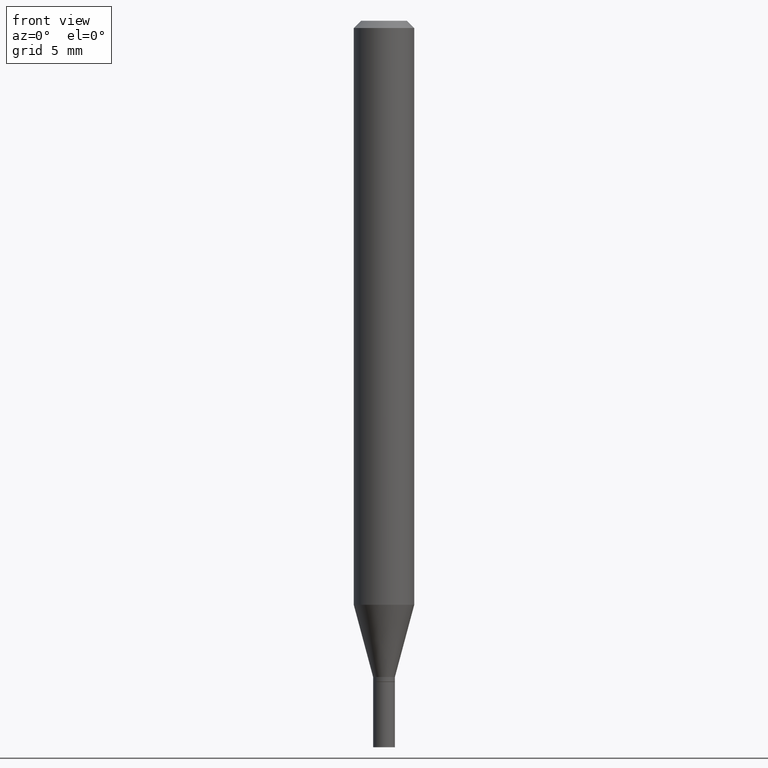
[diagram: clean part render]
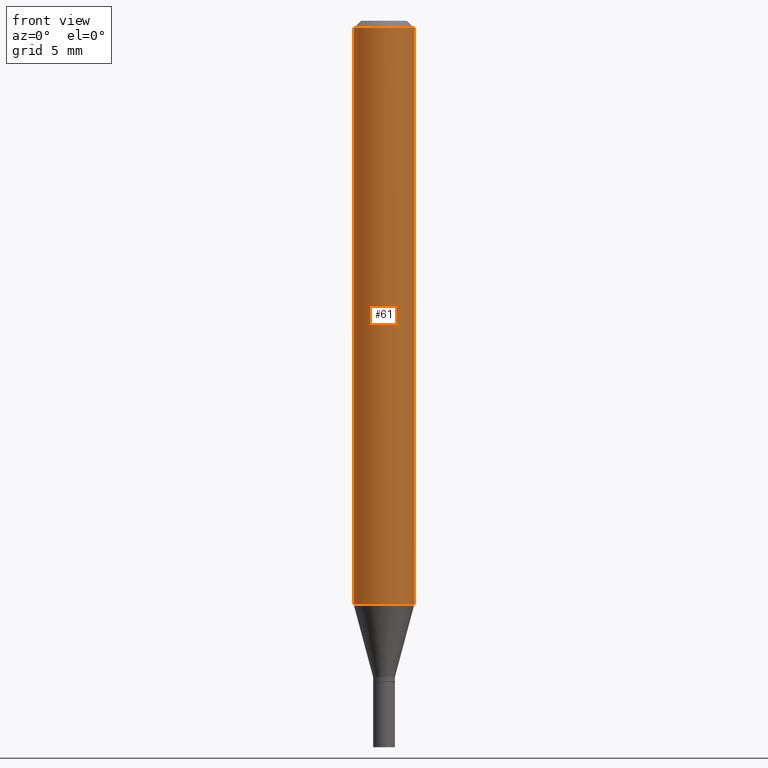
[diagram: same view with one face highlighted and labeled with its STEP entity id]
A machine part, front view. The second image highlights one B-rep face of the part: STEP entity #61.
In plain terms, the highlighted cylindrical surface (edge-blend (fillet) strip) has radius 1.5875 mm, axis along (-0, 0, 1).
Its self-contained STEP definition (entity closure, byte-faithful):
#2 = LINE ( 'NONE', #140, #127 ) ;
#35 = CARTESIAN_POINT ( 'NONE',  ( 3.668203209277705088E-31, -5.237222008264718399E-17, -0.01499999999999999944 ) ) ;
#37 = DIRECTION ( 'NONE',  ( 1.000000000000000000, -6.982962677686266711E-15, 0.000000000000000000 ) ) ;
#54 = VERTEX_POINT ( 'NONE', #363 ) ;
#59 = CIRCLE ( 'NONE', #390, 0.06250000000000000000 ) ;
#61 = ADVANCED_FACE ( 'NONE', ( #331 ), #290, .T. ) ;
#62 = VERTEX_POINT ( 'NONE', #394 ) ;
#93 = CARTESIAN_POINT ( 'NONE',  ( 0.000000000000000000, 0.000000000000000000, 0.000000000000000000 ) ) ;
#125 = VERTEX_POINT ( 'NONE', #219 ) ;
#127 = VECTOR ( 'NONE', #353, 39.37007874015748143 ) ;
#140 = CARTESIAN_POINT ( 'NONE',  ( 0.06250000000000000000, -4.364351673553916694E-16, 3.047610484872459871E-30 ) ) ;
#144 = DIRECTION ( 'NONE',  ( -2.445468806185136597E-29, 3.491481338843145583E-15, 1.000000000000000000 ) ) ;
#150 = ORIENTED_EDGE ( 'NONE', *, *, #243, .F. ) ;
#158 = AXIS2_PLACEMENT_3D ( 'NONE', #93, #400, #192 ) ;
#192 = DIRECTION ( 'NONE',  ( 1.000000000000000000, -6.982962677686266711E-15, 4.876176775795935793E-29 ) ) ;
#208 = DIRECTION ( 'NONE',  ( -2.445468806185136877E-29, 3.491481338843145188E-15, 1.000000000000000000 ) ) ;
#219 = CARTESIAN_POINT ( 'NONE',  ( 0.06250000000000000000, -4.888073874380388472E-16, -0.01499999999999999944 ) ) ;
#239 = CARTESIAN_POINT ( 'NONE',  ( -0.06250000000000000000, 4.440892098500626162E-16, -3.074334431409316114E-30 ) ) ;
#243 = EDGE_CURVE ( 'NONE', #54, #406, #420, .T. ) ;
#248 = DIRECTION ( 'NONE',  ( -2.445468806185136597E-29, 3.491481338843145583E-15, 1.000000000000000000 ) ) ;
#290 = CYLINDRICAL_SURFACE ( 'NONE', #158, 0.06250000000000000000 ) ;
#304 = ORIENTED_EDGE ( 'NONE', *, *, #328, .T. ) ;
#324 = CARTESIAN_POINT ( 'NONE',  ( -0.06250000000000000000, -1.686967792252667731E-15, -0.01499999999999999944 ) ) ;
#328 = EDGE_CURVE ( 'NONE', #62, #125, #2, .T. ) ;
#331 = FACE_OUTER_BOUND ( 'NONE', #446, .T. ) ;
#342 = EDGE_CURVE ( 'NONE', #54, #62, #59, .T. ) ;
#344 = ORIENTED_EDGE ( 'NONE', *, *, #354, .F. ) ;
#353 = DIRECTION ( 'NONE',  ( -2.445468806185136877E-29, 3.491481338843145188E-15, 1.000000000000000000 ) ) ;
#354 = EDGE_CURVE ( 'NONE', #406, #125, #422, .T. ) ;
#357 = DIRECTION ( 'NONE',  ( 1.000000000000000000, -6.982962677686270655E-15, 0.000000000000000000 ) ) ;
#362 = CARTESIAN_POINT ( 'NONE',  ( 2.948545679060551070E-29, -4.209741784122813615E-15, -1.205717967697245152 ) ) ;
#363 = CARTESIAN_POINT ( 'NONE',  ( -0.06250000000000001388, -3.765652574272750998E-15, -1.205717967697245152 ) ) ;
#390 = AXIS2_PLACEMENT_3D ( 'NONE', #362, #144, #357 ) ;
#394 = CARTESIAN_POINT ( 'NONE',  ( 0.06250000000000001388, -4.646176951478205284E-15, -1.205717967697245152 ) ) ;
#395 = VECTOR ( 'NONE', #208, 39.37007874015748143 ) ;
#400 = DIRECTION ( 'NONE',  ( -2.445468806185136597E-29, 3.491481338843145583E-15, 1.000000000000000000 ) ) ;
#406 = VERTEX_POINT ( 'NONE', #324 ) ;
#407 = AXIS2_PLACEMENT_3D ( 'NONE', #35, #248, #37 ) ;
#420 = LINE ( 'NONE', #239, #395 ) ;
#422 = CIRCLE ( 'NONE', #407, 0.06250000000000000000 ) ;
#428 = ORIENTED_EDGE ( 'NONE', *, *, #342, .T. ) ;
#446 = EDGE_LOOP ( 'NONE', ( #150, #428, #304, #344 ) ) ;